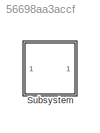
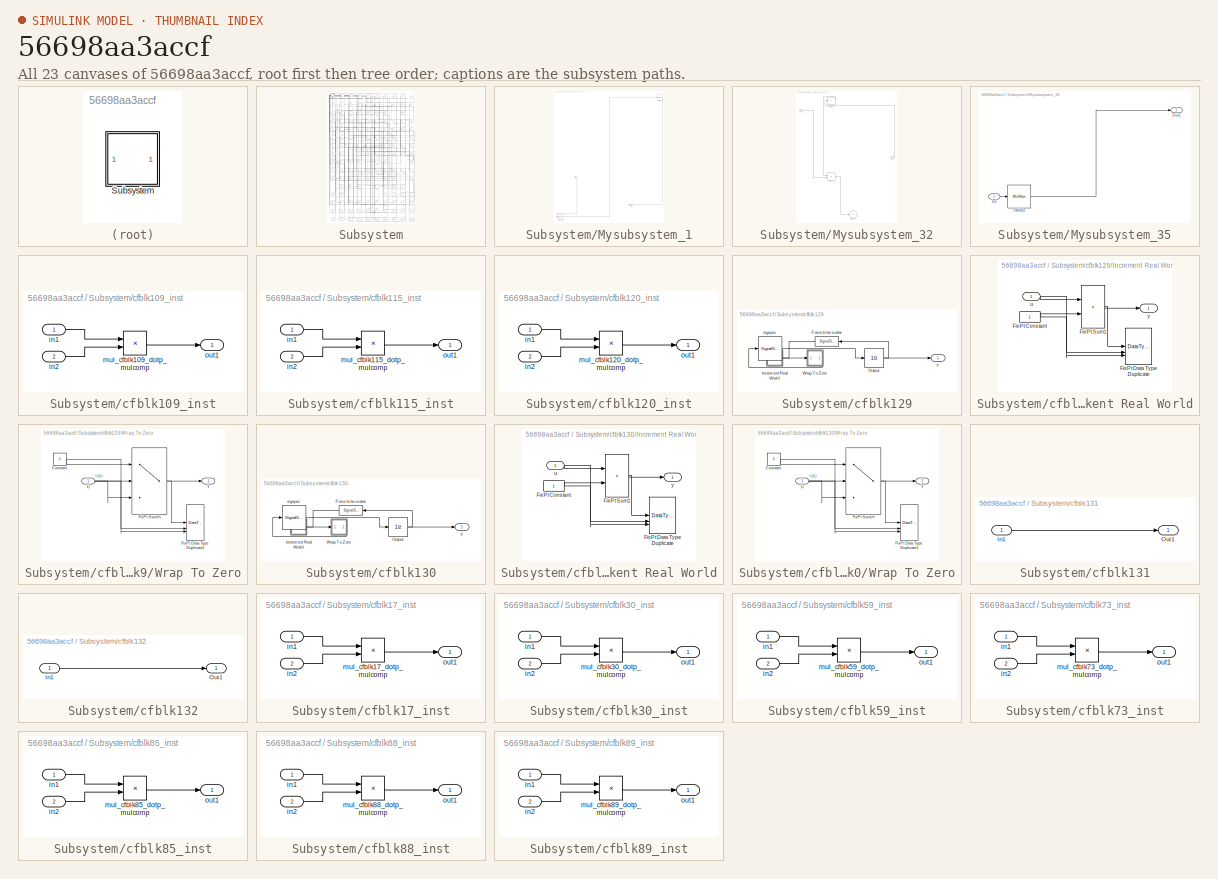
[diagram: thumbnail index - all 23 canvases of the model, root first then tree order]
MODEL slx_56698aa3accf
KIND model
CONFIG AbsTol = auto
CONFIG EnableMultiTasking = off
CONFIG FixedStep = auto
CONFIG MaxStep = auto
CONFIG MinStep = auto
CONFIG RelTol = 1e-3
CONFIG SampleTimeConstraint = Unconstrained
CONFIG SolverName = VariableStepAuto
CONFIG StartTime = 0.0
CONFIG StopTime = 10.0
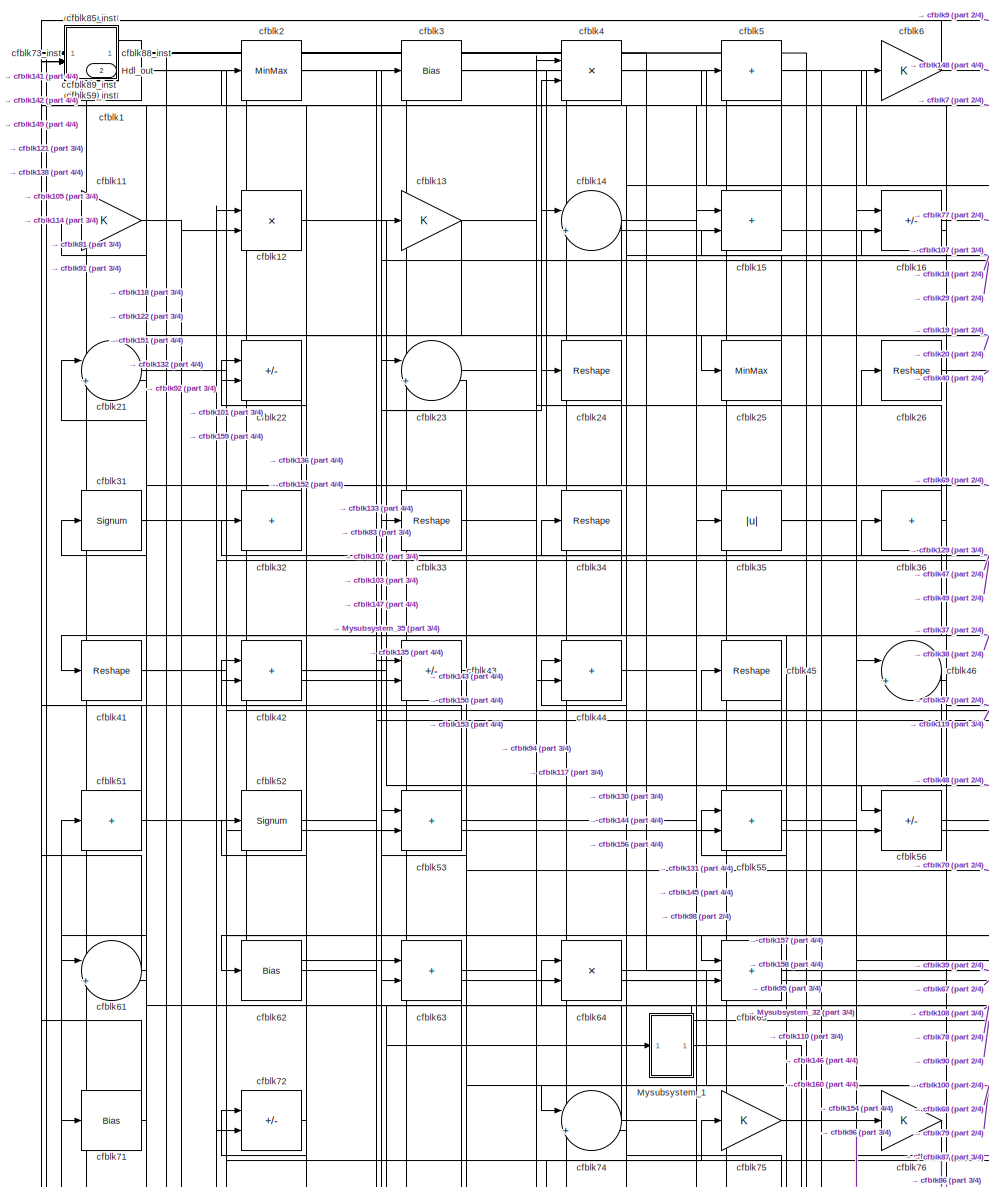
[diagram: Subsystem - part 1/4, top left region]
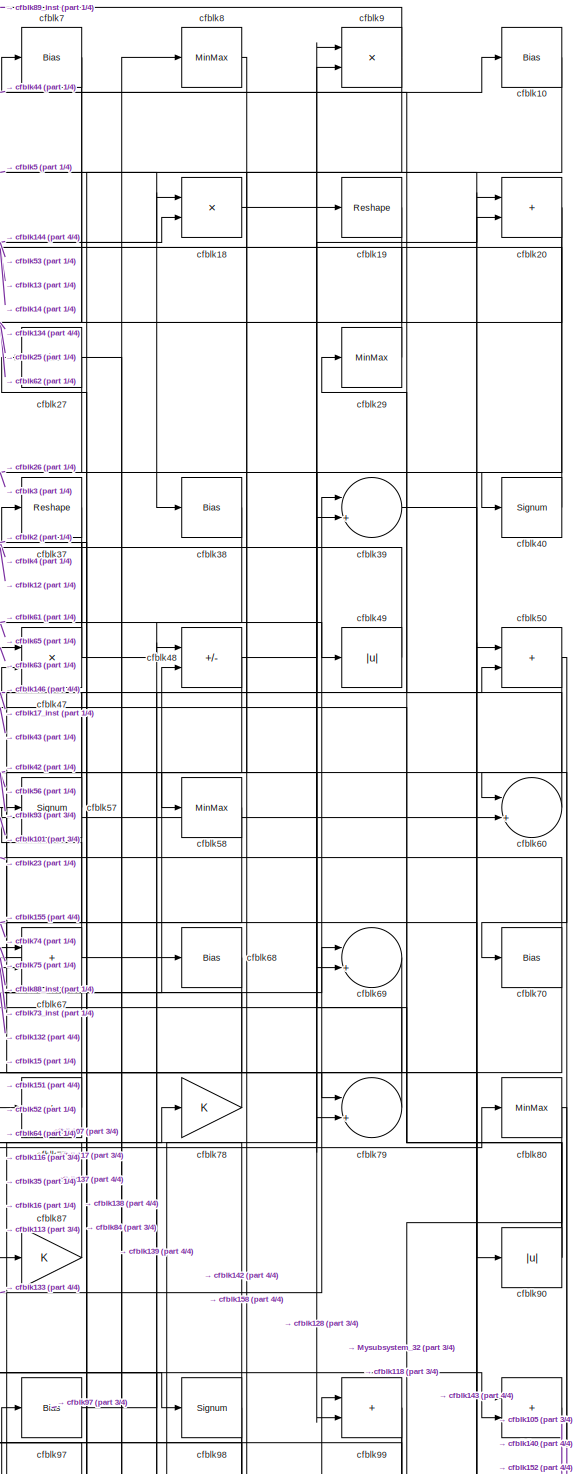
[diagram: Subsystem - part 2/4, top right region]
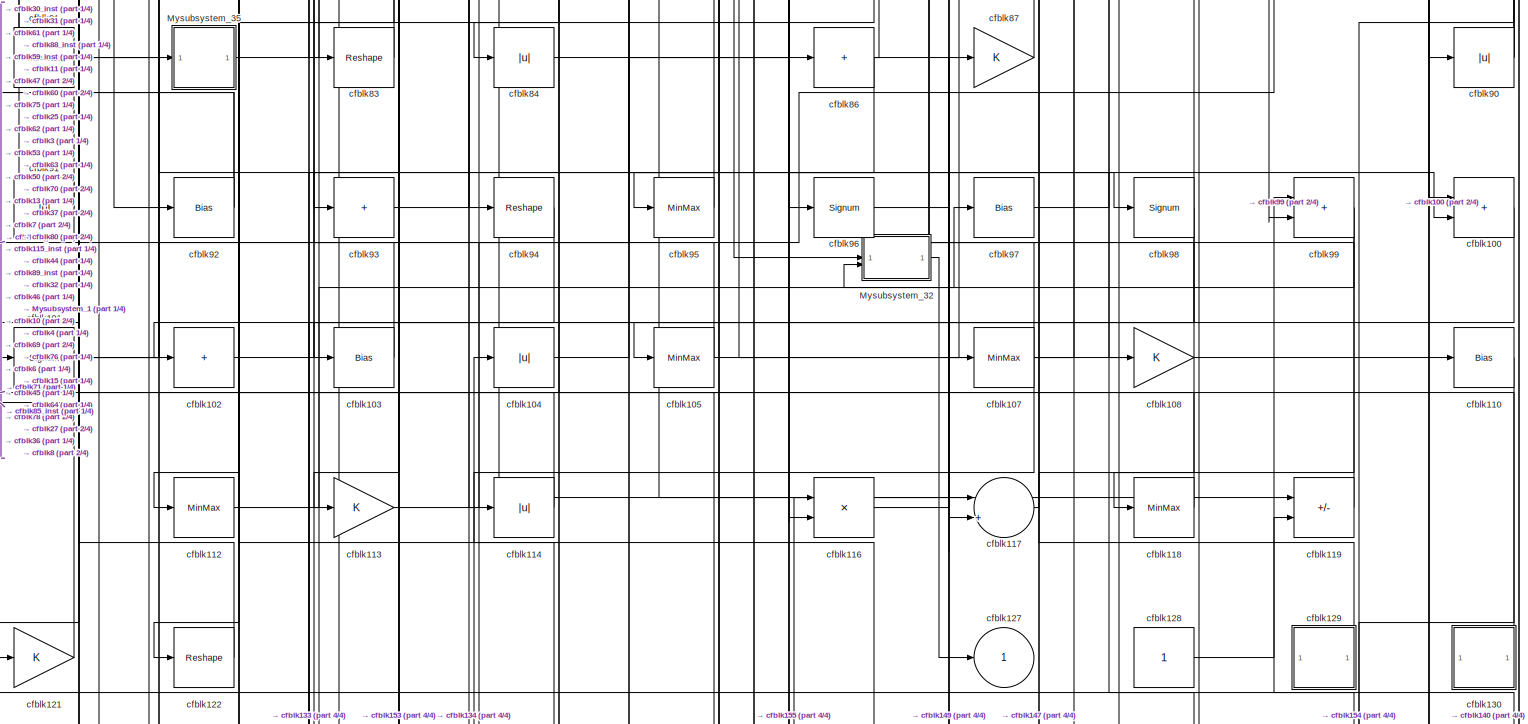
[diagram: Subsystem - part 3/4, full width, middle band]
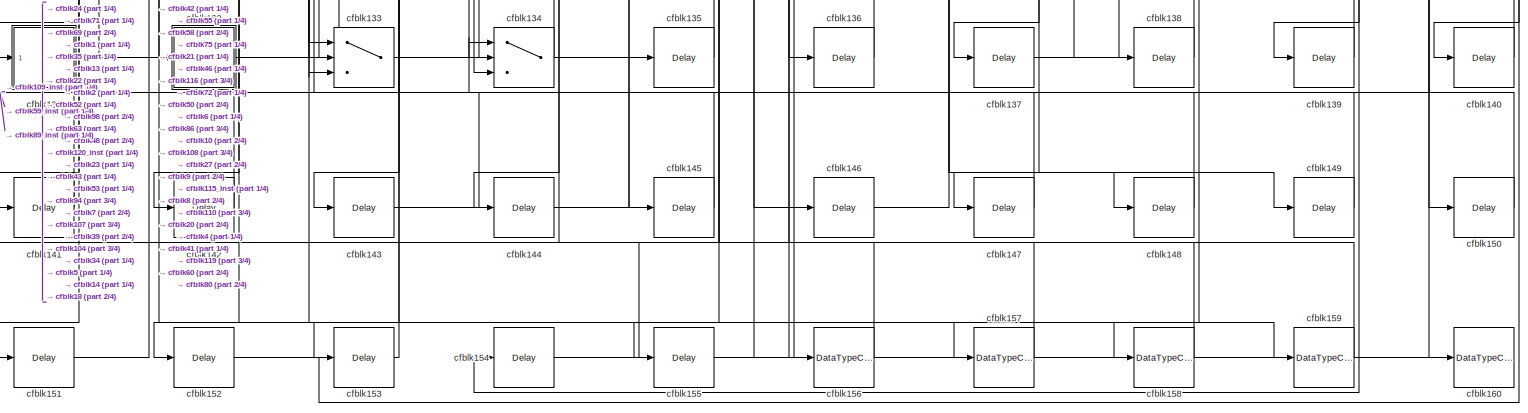
[diagram: Subsystem - part 4/4, full width, bottom band]
BLOCK [SubSystem] Subsystem
BLOCK [Outport] Subsystem/Hdl_out
  OutDataTypeStr = uint8
  Port = 2
  SampleTime = 1
BLOCK [SubSystem] Subsystem/Mysubsystem_1
BLOCK [Inport] Subsystem/Mysubsystem_1/In1
  OutDataTypeStr = uint8
  PortDimensions = 1
  SampleTime = 1
BLOCK [Outport] Subsystem/Mysubsystem_1/Out1
  SampleTime = 1
BLOCK [Signum] Subsystem/Mysubsystem_1/cfblk111
BLOCK [MinMax] Subsystem/Mysubsystem_1/cfblk28
BLOCK [SubSystem] Subsystem/Mysubsystem_32
BLOCK [Inport] Subsystem/Mysubsystem_32/In1
  OutDataTypeStr = uint8
  PortDimensions = 1
  SampleTime = 1
BLOCK [Inport] Subsystem/Mysubsystem_32/In2
  OutDataTypeStr = uint8
  Port = 2
  PortDimensions = 1
  SampleTime = 1
BLOCK [Sum] Subsystem/Mysubsystem_32/cfblk106
  IconShape = rectangular
  Inputs = +-
BLOCK [Outport] Subsystem/Mysubsystem_32/cfblk127
  SampleTime = 1
  VectorParamsAs1DForOutWhenUnconnected = off
BLOCK [Sum] Subsystem/Mysubsystem_32/cfblk66
  IconShape = rectangular
  Inputs = +
BLOCK [SubSystem] Subsystem/Mysubsystem_35
BLOCK [Inport] Subsystem/Mysubsystem_35/In1
  OutDataTypeStr = uint8
  PortDimensions = 1
  SampleTime = 1
BLOCK [Outport] Subsystem/Mysubsystem_35/Out1
  SampleTime = 1
BLOCK [MinMax] Subsystem/Mysubsystem_35/cfblk82
BLOCK [Sum] Subsystem/cfblk1
  IconShape = rectangular
  Inputs = +
  OutDataTypeStr = uint8
BLOCK [Bias] Subsystem/cfblk10
  Bias = 0.0
  SaturateOnIntegerOverflow = off
BLOCK [Sum] Subsystem/cfblk100
  IconShape = rectangular
  OutDataTypeStr = uint8
BLOCK [Signum] Subsystem/cfblk101
BLOCK [Sum] Subsystem/cfblk102
  IconShape = rectangular
  Inputs = +
  OutDataTypeStr = uint8
BLOCK [Bias] Subsystem/cfblk103
  Bias = 0.0
  SaturateOnIntegerOverflow = off
BLOCK [Abs] Subsystem/cfblk104
  OutDataTypeStr = uint8
  SaturateOnIntegerOverflow = off
BLOCK [MinMax] Subsystem/cfblk105
  OutDataTypeStr = uint8
BLOCK [MinMax] Subsystem/cfblk107
  OutDataTypeStr = uint8
BLOCK [Gain] Subsystem/cfblk108
  OutDataTypeStr = uint8
BLOCK [SubSystem] Subsystem/cfblk109_inst
BLOCK [Inport] Subsystem/cfblk109_inst/in1
  OutDataTypeStr = uint8
  SampleTime = 1
BLOCK [Inport] Subsystem/cfblk109_inst/in2
  OutDataTypeStr = uint8
  Port = 2
  SampleTime = 1
BLOCK [Product] Subsystem/cfblk109_inst/mul_cfblk109_dotp_mulcomp
  Inputs = **
  OutDataTypeStr = uint8
  SampleTime = 1
BLOCK [Outport] Subsystem/cfblk109_inst/out1
  OutDataTypeStr = uint8
  SampleTime = 1
BLOCK [Gain] Subsystem/cfblk11
  OutDataTypeStr = uint8
BLOCK [Bias] Subsystem/cfblk110
  Bias = 0.0
  SaturateOnIntegerOverflow = off
BLOCK [MinMax] Subsystem/cfblk112
  OutDataTypeStr = uint8
BLOCK [Gain] Subsystem/cfblk113
  OutDataTypeStr = uint8
BLOCK [Abs] Subsystem/cfblk114
  OutDataTypeStr = uint8
  SaturateOnIntegerOverflow = off
BLOCK [SubSystem] Subsystem/cfblk115_inst
BLOCK [Inport] Subsystem/cfblk115_inst/in1
  OutDataTypeStr = uint8
  SampleTime = 1
BLOCK [Inport] Subsystem/cfblk115_inst/in2
  OutDataTypeStr = uint8
  Port = 2
  SampleTime = 1
BLOCK [Product] Subsystem/cfblk115_inst/mul_cfblk115_dotp_mulcomp
  Inputs = **
  OutDataTypeStr = uint8
  SampleTime = 1
BLOCK [Outport] Subsystem/cfblk115_inst/out1
  OutDataTypeStr = uint8
  SampleTime = 1
BLOCK [Product] Subsystem/cfblk116
  Inputs = */
  OutDataTypeStr = uint8
  RndMeth = Zero
  SaturateOnIntegerOverflow = on
BLOCK [Sum] Subsystem/cfblk117
  Inputs = |++
  OutDataTypeStr = uint8
BLOCK [MinMax] Subsystem/cfblk118
  OutDataTypeStr = uint8
BLOCK [Sum] Subsystem/cfblk119
  IconShape = rectangular
  Inputs = +-
  OutDataTypeStr = uint8
BLOCK [Product] Subsystem/cfblk12
  Inputs = */
  OutDataTypeStr = uint8
  RndMeth = Zero
  SaturateOnIntegerOverflow = on
BLOCK [SubSystem] Subsystem/cfblk120_inst
BLOCK [Inport] Subsystem/cfblk120_inst/in1
  OutDataTypeStr = uint8
  SampleTime = 1
BLOCK [Inport] Subsystem/cfblk120_inst/in2
  OutDataTypeStr = uint8
  Port = 2
  SampleTime = 1
BLOCK [Product] Subsystem/cfblk120_inst/mul_cfblk120_dotp_mulcomp
  Inputs = **
  OutDataTypeStr = uint8
  SampleTime = 1
BLOCK [Outport] Subsystem/cfblk120_inst/out1
  OutDataTypeStr = uint8
  SampleTime = 1
BLOCK [Gain] Subsystem/cfblk121
  OutDataTypeStr = uint8
BLOCK [Reshape] Subsystem/cfblk122
BLOCK [Outport] Subsystem/cfblk127
  OutDataTypeStr = uint8
  SampleTime = 1
  VectorParamsAs1DForOutWhenUnconnected = off
BLOCK [Constant] Subsystem/cfblk128
  OutDataTypeStr = uint8
  SampleTime = -1
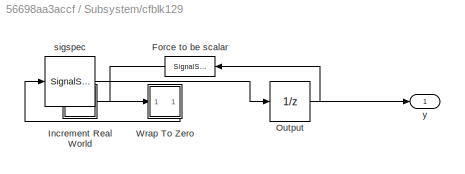
BLOCK [SubSystem] Subsystem/cfblk129
BLOCK [SignalSpecification] Subsystem/cfblk129/Force to be scalar
  Dimensions = 1
  DisableCoverage = on
BLOCK [SubSystem] Subsystem/cfblk129/Increment Real World
BLOCK [Constant] Subsystem/cfblk129/Increment Real World/FixPt Constant
  DisableCoverage = on
  OutDataTypeStr = Inherit: Inherit via back propagation
  SampleTime = -1
BLOCK [DataTypeDuplicate] Subsystem/cfblk129/Increment Real World/FixPt Data Type Duplicate
  DisableCoverage = on
  NumInputPorts = 3
BLOCK [Sum] Subsystem/cfblk129/Increment Real World/FixPt Sum1
  IconShape = rectangular
  InputSameDT = on
  LockScale = on
  OutDataTypeStr = Inherit: Inherit via back propagation
BLOCK [Inport] Subsystem/cfblk129/Increment Real World/u
  OutDataTypeStr = uint16
  SampleTime = 1
BLOCK [Outport] Subsystem/cfblk129/Increment Real World/y
  SampleTime = 1
BLOCK [UnitDelay] Subsystem/cfblk129/Output
  HasFrameUpgradeWarning = on
  InitialCondition = 0.0
  SampleTime = tsamp
BLOCK [SubSystem] Subsystem/cfblk129/Wrap To Zero
BLOCK [Constant] Subsystem/cfblk129/Wrap To Zero/Constant
  DisableCoverage = on
  OutDataTypeStr = Inherit: Inherit via back propagation
  SampleTime = -1
  Value = 0
BLOCK [DataTypeDuplicate] Subsystem/cfblk129/Wrap To Zero/FixPt Data Type Duplicate1
  DisableCoverage = on
  NumInputPorts = 3
BLOCK [Switch] Subsystem/cfblk129/Wrap To Zero/FixPt Switch
  Criteria = u2 > Threshold
  InputSameDT = off
  OutDataTypeStr = Inherit: Inherit via back propagation
  SaturateOnIntegerOverflow = off
  Threshold = Threshold
  ZeroCross = off
BLOCK [Inport] Subsystem/cfblk129/Wrap To Zero/U
  OutDataTypeStr = uint16
  SampleTime = 1
BLOCK [Outport] Subsystem/cfblk129/Wrap To Zero/Y
  SampleTime = 1
BLOCK [SignalSpecification] Subsystem/cfblk129/sigspec
  Dimensions = 1
  OutDataTypeStr = uint16
BLOCK [Outport] Subsystem/cfblk129/y
  SampleTime = 1
BLOCK [Gain] Subsystem/cfblk13
  OutDataTypeStr = uint8
BLOCK [SubSystem] Subsystem/cfblk130
BLOCK [SignalSpecification] Subsystem/cfblk130/Force to be scalar
  Dimensions = 1
  DisableCoverage = on
BLOCK [SubSystem] Subsystem/cfblk130/Increment Real World
BLOCK [Constant] Subsystem/cfblk130/Increment Real World/FixPt Constant
  DisableCoverage = on
  OutDataTypeStr = Inherit: Inherit via back propagation
  SampleTime = -1
BLOCK [DataTypeDuplicate] Subsystem/cfblk130/Increment Real World/FixPt Data Type Duplicate
  DisableCoverage = on
  NumInputPorts = 3
BLOCK [Sum] Subsystem/cfblk130/Increment Real World/FixPt Sum1
  IconShape = rectangular
  InputSameDT = on
  LockScale = on
  OutDataTypeStr = Inherit: Inherit via back propagation
BLOCK [Inport] Subsystem/cfblk130/Increment Real World/u
  OutDataTypeStr = uint16
  SampleTime = 1
BLOCK [Outport] Subsystem/cfblk130/Increment Real World/y
  SampleTime = 1
BLOCK [UnitDelay] Subsystem/cfblk130/Output
  HasFrameUpgradeWarning = on
  InitialCondition = 0.0
  SampleTime = tsamp
BLOCK [SubSystem] Subsystem/cfblk130/Wrap To Zero
BLOCK [Constant] Subsystem/cfblk130/Wrap To Zero/Constant
  DisableCoverage = on
  OutDataTypeStr = Inherit: Inherit via back propagation
  SampleTime = -1
  Value = 0
BLOCK [DataTypeDuplicate] Subsystem/cfblk130/Wrap To Zero/FixPt Data Type Duplicate1
  DisableCoverage = on
  NumInputPorts = 3
BLOCK [Switch] Subsystem/cfblk130/Wrap To Zero/FixPt Switch
  Criteria = u2 > Threshold
  InputSameDT = off
  OutDataTypeStr = Inherit: Inherit via back propagation
  SaturateOnIntegerOverflow = off
  Threshold = Threshold
  ZeroCross = off
BLOCK [Inport] Subsystem/cfblk130/Wrap To Zero/U
  OutDataTypeStr = uint16
  SampleTime = 1
BLOCK [Outport] Subsystem/cfblk130/Wrap To Zero/Y
  SampleTime = 1
BLOCK [SignalSpecification] Subsystem/cfblk130/sigspec
  Dimensions = 1
  OutDataTypeStr = uint16
BLOCK [Outport] Subsystem/cfblk130/y
  SampleTime = 1
BLOCK [SubSystem] Subsystem/cfblk131
BLOCK [Inport] Subsystem/cfblk131/In1
  OutDataTypeStr = uint8
  PortDimensions = 1
  SampleTime = 1
BLOCK [Outport] Subsystem/cfblk131/Out1
  SampleTime = 1
BLOCK [SubSystem] Subsystem/cfblk132
BLOCK [Inport] Subsystem/cfblk132/In1
  OutDataTypeStr = uint8
  PortDimensions = 1
  SampleTime = 1
BLOCK [Outport] Subsystem/cfblk132/Out1
  SampleTime = 1
BLOCK [Switch] Subsystem/cfblk133
  InputSameDT = off
  OutDataTypeStr = uint8
  SaturateOnIntegerOverflow = off
BLOCK [Switch] Subsystem/cfblk134
  InputSameDT = off
  OutDataTypeStr = uint8
  SaturateOnIntegerOverflow = off
BLOCK [Delay] Subsystem/cfblk135
  InputPortMap = u0
  SampleTime = 1
BLOCK [Delay] Subsystem/cfblk136
  InputPortMap = u0
  SampleTime = 1
BLOCK [Delay] Subsystem/cfblk137
  InputPortMap = u0
  SampleTime = 1
BLOCK [Delay] Subsystem/cfblk138
  InputPortMap = u0
  SampleTime = 1
BLOCK [Delay] Subsystem/cfblk139
  InputPortMap = u0
  SampleTime = 1
BLOCK [Sum] Subsystem/cfblk14
  Inputs = |++
  OutDataTypeStr = uint8
BLOCK [Delay] Subsystem/cfblk140
  InputPortMap = u0
  SampleTime = 1
BLOCK [Delay] Subsystem/cfblk141
  InputPortMap = u0
  SampleTime = 1
BLOCK [Delay] Subsystem/cfblk142
  InputPortMap = u0
  SampleTime = 1
BLOCK [Delay] Subsystem/cfblk143
  InputPortMap = u0
  SampleTime = 1
BLOCK [Delay] Subsystem/cfblk144
  InputPortMap = u0
  SampleTime = 1
BLOCK [Delay] Subsystem/cfblk145
  InputPortMap = u0
  SampleTime = 1
BLOCK [Delay] Subsystem/cfblk146
  InputPortMap = u0
  SampleTime = 1
BLOCK [Delay] Subsystem/cfblk147
  InputPortMap = u0
  SampleTime = 1
BLOCK [Delay] Subsystem/cfblk148
  InputPortMap = u0
  SampleTime = 1
BLOCK [Delay] Subsystem/cfblk149
  InputPortMap = u0
  SampleTime = 1
BLOCK [Sum] Subsystem/cfblk15
  IconShape = rectangular
  OutDataTypeStr = uint8
BLOCK [Delay] Subsystem/cfblk150
  InputPortMap = u0
  SampleTime = 1
BLOCK [Delay] Subsystem/cfblk151
  InputPortMap = u0
  SampleTime = 1
BLOCK [Delay] Subsystem/cfblk152
  InputPortMap = u0
  SampleTime = 1
BLOCK [Delay] Subsystem/cfblk153
  InputPortMap = u0
  SampleTime = 1
BLOCK [Delay] Subsystem/cfblk154
  InputPortMap = u0
  SampleTime = 1
BLOCK [Delay] Subsystem/cfblk155
  InputPortMap = u0
  SampleTime = 1
BLOCK [DataTypeConversion] Subsystem/cfblk156
  OutDataTypeStr = uint8
  RndMeth = Floor
  SaturateOnIntegerOverflow = off
BLOCK [DataTypeConversion] Subsystem/cfblk157
  OutDataTypeStr = uint8
  RndMeth = Floor
  SaturateOnIntegerOverflow = off
BLOCK [DataTypeConversion] Subsystem/cfblk158
  OutDataTypeStr = uint8
  RndMeth = Floor
  SaturateOnIntegerOverflow = off
BLOCK [DataTypeConversion] Subsystem/cfblk159
  OutDataTypeStr = uint8
  RndMeth = Floor
  SaturateOnIntegerOverflow = off
BLOCK [Sum] Subsystem/cfblk16
  IconShape = rectangular
  Inputs = +-
  OutDataTypeStr = uint8
BLOCK [DataTypeConversion] Subsystem/cfblk160
  OutDataTypeStr = uint8
  RndMeth = Floor
  SaturateOnIntegerOverflow = off
BLOCK [SubSystem] Subsystem/cfblk17_inst
BLOCK [Inport] Subsystem/cfblk17_inst/in1
  OutDataTypeStr = uint8
  SampleTime = 1
BLOCK [Inport] Subsystem/cfblk17_inst/in2
  OutDataTypeStr = uint8
  Port = 2
  SampleTime = 1
BLOCK [Product] Subsystem/cfblk17_inst/mul_cfblk17_dotp_mulcomp
  Inputs = **
  OutDataTypeStr = uint8
  SampleTime = 1
BLOCK [Outport] Subsystem/cfblk17_inst/out1
  OutDataTypeStr = uint8
  SampleTime = 1
BLOCK [Product] Subsystem/cfblk18
  Inputs = */
  OutDataTypeStr = uint8
  RndMeth = Zero
  SaturateOnIntegerOverflow = on
BLOCK [Reshape] Subsystem/cfblk19
BLOCK [MinMax] Subsystem/cfblk2
  OutDataTypeStr = uint8
BLOCK [Sum] Subsystem/cfblk20
  IconShape = rectangular
  OutDataTypeStr = uint8
BLOCK [Sum] Subsystem/cfblk21
  Inputs = |++
  OutDataTypeStr = uint8
BLOCK [Sum] Subsystem/cfblk22
  IconShape = rectangular
  Inputs = +-
  OutDataTypeStr = uint8
BLOCK [Sum] Subsystem/cfblk23
  Inputs = |++
  OutDataTypeStr = uint8
BLOCK [Reshape] Subsystem/cfblk24
BLOCK [MinMax] Subsystem/cfblk25
  OutDataTypeStr = uint8
BLOCK [Reshape] Subsystem/cfblk26
BLOCK [Bias] Subsystem/cfblk27
  Bias = 0.0
  SaturateOnIntegerOverflow = off
BLOCK [MinMax] Subsystem/cfblk29
  OutDataTypeStr = uint8
BLOCK [Bias] Subsystem/cfblk3
  Bias = 0.0
  SaturateOnIntegerOverflow = off
BLOCK [SubSystem] Subsystem/cfblk30_inst
BLOCK [Inport] Subsystem/cfblk30_inst/in1
  OutDataTypeStr = uint8
  SampleTime = 1
BLOCK [Inport] Subsystem/cfblk30_inst/in2
  OutDataTypeStr = uint8
  Port = 2
  SampleTime = 1
BLOCK [Product] Subsystem/cfblk30_inst/mul_cfblk30_dotp_mulcomp
  Inputs = **
  OutDataTypeStr = uint8
  SampleTime = 1
BLOCK [Outport] Subsystem/cfblk30_inst/out1
  OutDataTypeStr = uint8
  SampleTime = 1
BLOCK [Signum] Subsystem/cfblk31
BLOCK [Sum] Subsystem/cfblk32
  IconShape = rectangular
  Inputs = +
  OutDataTypeStr = uint8
BLOCK [Reshape] Subsystem/cfblk33
BLOCK [Reshape] Subsystem/cfblk34
BLOCK [Abs] Subsystem/cfblk35
  OutDataTypeStr = uint8
  SaturateOnIntegerOverflow = off
BLOCK [Sum] Subsystem/cfblk36
  IconShape = rectangular
  Inputs = +
  OutDataTypeStr = uint8
BLOCK [Reshape] Subsystem/cfblk37
BLOCK [Bias] Subsystem/cfblk38
  Bias = 0.0
  SaturateOnIntegerOverflow = off
BLOCK [Sum] Subsystem/cfblk39
  Inputs = |++
  OutDataTypeStr = uint8
BLOCK [Product] Subsystem/cfblk4
  Inputs = */
  OutDataTypeStr = uint8
  RndMeth = Zero
  SaturateOnIntegerOverflow = on
BLOCK [Signum] Subsystem/cfblk40
BLOCK [Reshape] Subsystem/cfblk41
BLOCK [Sum] Subsystem/cfblk42
  IconShape = rectangular
  OutDataTypeStr = uint8
BLOCK [Sum] Subsystem/cfblk43
  IconShape = rectangular
  Inputs = +-
  OutDataTypeStr = uint8
BLOCK [Sum] Subsystem/cfblk44
  IconShape = rectangular
  OutDataTypeStr = uint8
BLOCK [Reshape] Subsystem/cfblk45
BLOCK [Sum] Subsystem/cfblk46
  Inputs = |++
  OutDataTypeStr = uint8
BLOCK [Product] Subsystem/cfblk47
  Inputs = */
  OutDataTypeStr = uint8
  RndMeth = Zero
  SaturateOnIntegerOverflow = on
BLOCK [Sum] Subsystem/cfblk48
  IconShape = rectangular
  Inputs = +-
  OutDataTypeStr = uint8
BLOCK [Abs] Subsystem/cfblk49
  OutDataTypeStr = uint8
  SaturateOnIntegerOverflow = off
BLOCK [Sum] Subsystem/cfblk5
  IconShape = rectangular
  Inputs = +
  OutDataTypeStr = uint8
BLOCK [Sum] Subsystem/cfblk50
  IconShape = rectangular
  OutDataTypeStr = uint8
BLOCK [Sum] Subsystem/cfblk51
  IconShape = rectangular
  Inputs = +
  OutDataTypeStr = uint8
BLOCK [Signum] Subsystem/cfblk52
BLOCK [Sum] Subsystem/cfblk53
  IconShape = rectangular
  OutDataTypeStr = uint8
BLOCK [Sum] Subsystem/cfblk55
  IconShape = rectangular
  OutDataTypeStr = uint8
BLOCK [Sum] Subsystem/cfblk56
  IconShape = rectangular
  Inputs = +-
  OutDataTypeStr = uint8
BLOCK [Signum] Subsystem/cfblk57
BLOCK [MinMax] Subsystem/cfblk58
  OutDataTypeStr = uint8
BLOCK [SubSystem] Subsystem/cfblk59_inst
BLOCK [Inport] Subsystem/cfblk59_inst/in1
  OutDataTypeStr = uint8
  SampleTime = 1
BLOCK [Inport] Subsystem/cfblk59_inst/in2
  OutDataTypeStr = uint8
  Port = 2
  SampleTime = 1
BLOCK [Product] Subsystem/cfblk59_inst/mul_cfblk59_dotp_mulcomp
  Inputs = **
  OutDataTypeStr = uint8
  SampleTime = 1
BLOCK [Outport] Subsystem/cfblk59_inst/out1
  OutDataTypeStr = uint8
  SampleTime = 1
BLOCK [Gain] Subsystem/cfblk6
  OutDataTypeStr = uint8
BLOCK [Sum] Subsystem/cfblk60
  Inputs = |++
  OutDataTypeStr = uint8
BLOCK [Sum] Subsystem/cfblk61
  Inputs = |++
  OutDataTypeStr = uint8
BLOCK [Bias] Subsystem/cfblk62
  Bias = 0.0
  SaturateOnIntegerOverflow = off
BLOCK [Sum] Subsystem/cfblk63
  IconShape = rectangular
  OutDataTypeStr = uint8
BLOCK [Product] Subsystem/cfblk64
  Inputs = */
  OutDataTypeStr = uint8
  RndMeth = Zero
  SaturateOnIntegerOverflow = on
BLOCK [Sum] Subsystem/cfblk65
  IconShape = rectangular
  OutDataTypeStr = uint8
BLOCK [Sum] Subsystem/cfblk67
  IconShape = rectangular
  OutDataTypeStr = uint8
BLOCK [Bias] Subsystem/cfblk68
  Bias = 0.0
  SaturateOnIntegerOverflow = off
BLOCK [Sum] Subsystem/cfblk69
  Inputs = |++
  OutDataTypeStr = uint8
BLOCK [Bias] Subsystem/cfblk7
  Bias = 0.0
  SaturateOnIntegerOverflow = off
BLOCK [Bias] Subsystem/cfblk70
  Bias = 0.0
  SaturateOnIntegerOverflow = off
BLOCK [Bias] Subsystem/cfblk71
  Bias = 0.0
  SaturateOnIntegerOverflow = off
BLOCK [Sum] Subsystem/cfblk72
  IconShape = rectangular
  Inputs = +-
  OutDataTypeStr = uint8
BLOCK [SubSystem] Subsystem/cfblk73_inst
BLOCK [Inport] Subsystem/cfblk73_inst/in1
  OutDataTypeStr = uint8
  SampleTime = 1
BLOCK [Inport] Subsystem/cfblk73_inst/in2
  OutDataTypeStr = uint8
  Port = 2
  SampleTime = 1
BLOCK [Product] Subsystem/cfblk73_inst/mul_cfblk73_dotp_mulcomp
  Inputs = **
  OutDataTypeStr = uint8
  SampleTime = 1
BLOCK [Outport] Subsystem/cfblk73_inst/out1
  OutDataTypeStr = uint8
  SampleTime = 1
BLOCK [Sum] Subsystem/cfblk74
  Inputs = |++
  OutDataTypeStr = uint8
BLOCK [Gain] Subsystem/cfblk75
  OutDataTypeStr = uint8
BLOCK [Gain] Subsystem/cfblk76
  OutDataTypeStr = uint8
BLOCK [Sum] Subsystem/cfblk77
  IconShape = rectangular
  Inputs = +
  OutDataTypeStr = uint8
BLOCK [Gain] Subsystem/cfblk78
  OutDataTypeStr = uint8
BLOCK [Sum] Subsystem/cfblk79
  Inputs = |++
  OutDataTypeStr = uint8
BLOCK [MinMax] Subsystem/cfblk8
  OutDataTypeStr = uint8
BLOCK [MinMax] Subsystem/cfblk80
  OutDataTypeStr = uint8
BLOCK [MinMax] Subsystem/cfblk81
  OutDataTypeStr = uint8
BLOCK [Reshape] Subsystem/cfblk83
BLOCK [Abs] Subsystem/cfblk84
  OutDataTypeStr = uint8
  SaturateOnIntegerOverflow = off
BLOCK [SubSystem] Subsystem/cfblk85_inst
BLOCK [Inport] Subsystem/cfblk85_inst/in1
  OutDataTypeStr = uint8
  SampleTime = 1
BLOCK [Inport] Subsystem/cfblk85_inst/in2
  OutDataTypeStr = uint8
  Port = 2
  SampleTime = 1
BLOCK [Product] Subsystem/cfblk85_inst/mul_cfblk85_dotp_mulcomp
  Inputs = **
  OutDataTypeStr = uint8
  SampleTime = 1
BLOCK [Outport] Subsystem/cfblk85_inst/out1
  OutDataTypeStr = uint8
  SampleTime = 1
BLOCK [Sum] Subsystem/cfblk86
  IconShape = rectangular
  Inputs = +
  OutDataTypeStr = uint8
BLOCK [Gain] Subsystem/cfblk87
  OutDataTypeStr = uint8
BLOCK [SubSystem] Subsystem/cfblk88_inst
BLOCK [Inport] Subsystem/cfblk88_inst/in1
  OutDataTypeStr = uint8
  SampleTime = 1
BLOCK [Inport] Subsystem/cfblk88_inst/in2
  OutDataTypeStr = uint8
  Port = 2
  SampleTime = 1
BLOCK [Product] Subsystem/cfblk88_inst/mul_cfblk88_dotp_mulcomp
  Inputs = **
  OutDataTypeStr = uint8
  SampleTime = 1
BLOCK [Outport] Subsystem/cfblk88_inst/out1
  OutDataTypeStr = uint8
  SampleTime = 1
BLOCK [SubSystem] Subsystem/cfblk89_inst
BLOCK [Inport] Subsystem/cfblk89_inst/in1
  OutDataTypeStr = uint8
  SampleTime = 1
BLOCK [Inport] Subsystem/cfblk89_inst/in2
  OutDataTypeStr = uint8
  Port = 2
  SampleTime = 1
BLOCK [Product] Subsystem/cfblk89_inst/mul_cfblk89_dotp_mulcomp
  Inputs = **
  OutDataTypeStr = uint8
  SampleTime = 1
BLOCK [Outport] Subsystem/cfblk89_inst/out1
  OutDataTypeStr = uint8
  SampleTime = 1
BLOCK [Product] Subsystem/cfblk9
  Inputs = */
  OutDataTypeStr = uint8
  RndMeth = Zero
  SaturateOnIntegerOverflow = on
BLOCK [Abs] Subsystem/cfblk90
  OutDataTypeStr = uint8
  SaturateOnIntegerOverflow = off
BLOCK [Abs] Subsystem/cfblk91
  OutDataTypeStr = uint8
  SaturateOnIntegerOverflow = off
BLOCK [Bias] Subsystem/cfblk92
  Bias = 0.0
  SaturateOnIntegerOverflow = off
BLOCK [Sum] Subsystem/cfblk93
  IconShape = rectangular
  Inputs = +
  OutDataTypeStr = uint8
BLOCK [Reshape] Subsystem/cfblk94
BLOCK [MinMax] Subsystem/cfblk95
  OutDataTypeStr = uint8
BLOCK [Signum] Subsystem/cfblk96
BLOCK [Bias] Subsystem/cfblk97
  Bias = 0.0
  SaturateOnIntegerOverflow = off
BLOCK [Signum] Subsystem/cfblk98
BLOCK [Sum] Subsystem/cfblk99
  IconShape = rectangular
  OutDataTypeStr = uint8
ANNOTATION Subsystem/cfblk129/Wrap To Zero: U(k)
ANNOTATION Subsystem/cfblk130/Wrap To Zero: U(k)
LINE Subsystem/Mysubsystem_1/In1:1 -> Subsystem/Mysubsystem_1/cfblk111:1
LINE Subsystem/Mysubsystem_1/cfblk111:1 -> Subsystem/Mysubsystem_1/cfblk28:1
LINE Subsystem/Mysubsystem_1/cfblk28:1 -> Subsystem/Mysubsystem_1/Out1:1
LINE Subsystem/Mysubsystem_1:1 -> Subsystem/Mysubsystem_32:1
LINE Subsystem/Mysubsystem_32/In1:1 -> Subsystem/Mysubsystem_32/cfblk106:2
LINE Subsystem/Mysubsystem_32/In2:1 -> Subsystem/Mysubsystem_32/cfblk66:1
LINE Subsystem/Mysubsystem_32/cfblk106:1 -> Subsystem/Mysubsystem_32/cfblk127:1
LINE Subsystem/Mysubsystem_32/cfblk66:1 -> Subsystem/Mysubsystem_32/cfblk106:1
LINE Subsystem/Mysubsystem_32:1 -> Subsystem/cfblk127:1
LINE Subsystem/Mysubsystem_35/In1:1 -> Subsystem/Mysubsystem_35/cfblk82:1
LINE Subsystem/Mysubsystem_35/cfblk82:1 -> Subsystem/Mysubsystem_35/Out1:1
LINE Subsystem/Mysubsystem_35:1 -> Subsystem/Mysubsystem_1:1
LINE Subsystem/cfblk100:1 -> Subsystem/cfblk105:1
NET Subsystem/cfblk101:1 -> Subsystem/cfblk47:2, Subsystem/cfblk60:2, Subsystem/cfblk75:1
LINE Subsystem/cfblk102:1 -> Subsystem/cfblk3:1
LINE Subsystem/cfblk103:1 -> Subsystem/cfblk53:1
LINE Subsystem/cfblk104:1 -> Subsystem/cfblk86:1
NET Subsystem/cfblk105:1 -> Subsystem/cfblk51:1, Subsystem/cfblk78:1
NET Subsystem/cfblk107:1 -> Subsystem/cfblk134:3, Subsystem/cfblk15:2, Subsystem/cfblk8:1
NET Subsystem/cfblk108:1 -> Subsystem/cfblk147:1, Subsystem/cfblk64:1
LINE Subsystem/cfblk109_inst/in1:1 -> Subsystem/cfblk109_inst/mul_cfblk109_dotp_mulcomp:1
LINE Subsystem/cfblk109_inst/in2:1 -> Subsystem/cfblk109_inst/mul_cfblk109_dotp_mulcomp:2
LINE Subsystem/cfblk109_inst/mul_cfblk109_dotp_mulcomp:1 -> Subsystem/cfblk109_inst/out1:1
LINE Subsystem/cfblk109_inst:1 -> Subsystem/cfblk63:1
LINE Subsystem/cfblk10:1 -> Subsystem/cfblk137:1
LINE Subsystem/cfblk110:1 -> Subsystem/cfblk154:1
LINE Subsystem/cfblk112:1 -> Subsystem/cfblk97:1
LINE Subsystem/cfblk113:1 -> Subsystem/cfblk80:1
LINE Subsystem/cfblk114:1 -> Subsystem/cfblk71:1
LINE Subsystem/cfblk115_inst/in1:1 -> Subsystem/cfblk115_inst/mul_cfblk115_dotp_mulcomp:1
LINE Subsystem/cfblk115_inst/in2:1 -> Subsystem/cfblk115_inst/mul_cfblk115_dotp_mulcomp:2
LINE Subsystem/cfblk115_inst/mul_cfblk115_dotp_mulcomp:1 -> Subsystem/cfblk115_inst/out1:1
LINE Subsystem/cfblk115_inst:1 -> Subsystem/cfblk117:1
LINE Subsystem/cfblk116:1 -> Subsystem/cfblk87:1
LINE Subsystem/cfblk117:1 -> Subsystem/cfblk27:1
LINE Subsystem/cfblk118:1 -> Subsystem/cfblk61:2
LINE Subsystem/cfblk119:1 -> Subsystem/cfblk45:1
LINE Subsystem/cfblk11:1 -> Subsystem/cfblk92:1
LINE Subsystem/cfblk120_inst/in1:1 -> Subsystem/cfblk120_inst/mul_cfblk120_dotp_mulcomp:1
LINE Subsystem/cfblk120_inst/in2:1 -> Subsystem/cfblk120_inst/mul_cfblk120_dotp_mulcomp:2
LINE Subsystem/cfblk120_inst/mul_cfblk120_dotp_mulcomp:1 -> Subsystem/cfblk120_inst/out1:1
LINE Subsystem/cfblk120_inst:1 -> Subsystem/cfblk135:1
LINE Subsystem/cfblk121:1 -> Subsystem/cfblk85_inst:1
LINE Subsystem/cfblk122:1 -> Subsystem/cfblk11:1
LINE Subsystem/cfblk128:1 -> Subsystem/cfblk99:1
LINE Subsystem/cfblk129:1 -> Subsystem/cfblk36:1
LINE Subsystem/cfblk12:1 -> Subsystem/cfblk56:1
LINE Subsystem/cfblk130:1 -> Subsystem/cfblk44:1
LINE Subsystem/cfblk131/In1:1 -> Subsystem/cfblk131/Out1:1
LINE Subsystem/cfblk131:1 -> Subsystem/cfblk35:1
LINE Subsystem/cfblk132/In1:1 -> Subsystem/cfblk132/Out1:1
LINE Subsystem/cfblk132:1 -> Subsystem/cfblk48:2
LINE Subsystem/cfblk133:1 -> Subsystem/cfblk39:1
LINE Subsystem/cfblk134:1 -> Subsystem/cfblk104:1
LINE Subsystem/cfblk135:1 -> Subsystem/cfblk42:1
LINE Subsystem/cfblk136:1 -> Subsystem/cfblk72:1
LINE Subsystem/cfblk137:1 -> Subsystem/cfblk9:2
LINE Subsystem/cfblk138:1 -> Subsystem/cfblk115_inst:2
LINE Subsystem/cfblk139:1 -> Subsystem/cfblk48:1
NET Subsystem/cfblk13:1 -> Subsystem/cfblk152:1, Subsystem/cfblk94:1
LINE Subsystem/cfblk140:1 -> Subsystem/cfblk119:2
LINE Subsystem/cfblk141:1 -> Subsystem/cfblk109_inst:1
LINE Subsystem/cfblk142:1 -> Subsystem/cfblk59_inst:1
LINE Subsystem/cfblk143:1 -> Subsystem/cfblk20:2
LINE Subsystem/cfblk144:1 -> Subsystem/cfblk18:2
LINE Subsystem/cfblk145:1 -> Subsystem/cfblk22:1
LINE Subsystem/cfblk146:1 -> Subsystem/cfblk50:2
LINE Subsystem/cfblk147:1 -> Subsystem/cfblk63:2
LINE Subsystem/cfblk148:1 -> Subsystem/cfblk134:1
LINE Subsystem/cfblk149:1 -> Subsystem/cfblk89_inst:2
NET Subsystem/cfblk14:1 -> Subsystem/cfblk145:1, Subsystem/cfblk21:2
LINE Subsystem/cfblk150:1 -> Subsystem/cfblk23:1
LINE Subsystem/cfblk151:1 -> Subsystem/cfblk69:1
LINE Subsystem/cfblk152:1 -> Subsystem/cfblk60:1
LINE Subsystem/cfblk153:1 -> Subsystem/cfblk53:2
LINE Subsystem/cfblk154:1 -> Subsystem/cfblk46:1
LINE Subsystem/cfblk155:1 -> Subsystem/cfblk116:1
LINE Subsystem/cfblk156:1 -> Subsystem/cfblk34:1
LINE Subsystem/cfblk157:1 -> Subsystem/cfblk55:1
LINE Subsystem/cfblk158:1 -> Subsystem/cfblk55:2
LINE Subsystem/cfblk159:1 -> Subsystem/cfblk109_inst:2
LINE Subsystem/cfblk15:1 -> Subsystem/cfblk73_inst:1
LINE Subsystem/cfblk160:1 -> Subsystem/cfblk1:1
LINE Subsystem/cfblk16:1 -> Subsystem/cfblk77:1
LINE Subsystem/cfblk17_inst/in1:1 -> Subsystem/cfblk17_inst/mul_cfblk17_dotp_mulcomp:1
LINE Subsystem/cfblk17_inst/in2:1 -> Subsystem/cfblk17_inst/mul_cfblk17_dotp_mulcomp:2
LINE Subsystem/cfblk17_inst/mul_cfblk17_dotp_mulcomp:1 -> Subsystem/cfblk17_inst/out1:1
LINE Subsystem/cfblk17_inst:1 -> Subsystem/cfblk30_inst:2
LINE Subsystem/cfblk18:1 -> Subsystem/cfblk19:1
LINE Subsystem/cfblk19:1 -> Subsystem/cfblk62:1
LINE Subsystem/cfblk1:1 -> Subsystem/cfblk159:1
NET Subsystem/cfblk20:1 -> Subsystem/cfblk25:1, Subsystem/cfblk99:2
LINE Subsystem/cfblk21:1 -> Subsystem/cfblk136:1
LINE Subsystem/cfblk22:1 -> Subsystem/cfblk72:2
LINE Subsystem/cfblk23:1 -> Subsystem/cfblk44:2
LINE Subsystem/cfblk24:1 -> Subsystem/cfblk131:1
NET Subsystem/cfblk25:1 -> Subsystem/cfblk122:1, Subsystem/cfblk30_inst:1
LINE Subsystem/cfblk26:1 -> Subsystem/cfblk40:1
NET Subsystem/cfblk27:1 -> Subsystem/cfblk138:1, Subsystem/cfblk84:1
LINE Subsystem/cfblk29:1 -> Subsystem/cfblk13:1
LINE Subsystem/cfblk2:1 -> Subsystem/cfblk133:1
LINE Subsystem/cfblk30_inst/in1:1 -> Subsystem/cfblk30_inst/mul_cfblk30_dotp_mulcomp:1
LINE Subsystem/cfblk30_inst/in2:1 -> Subsystem/cfblk30_inst/mul_cfblk30_dotp_mulcomp:2
LINE Subsystem/cfblk30_inst/mul_cfblk30_dotp_mulcomp:1 -> Subsystem/cfblk30_inst/out1:1
LINE Subsystem/cfblk30_inst:1 -> Subsystem/cfblk91:1
NET Subsystem/cfblk31:1 -> Subsystem/cfblk121:1, Subsystem/cfblk76:1
LINE Subsystem/cfblk32:1 -> Subsystem/cfblk22:2
LINE Subsystem/cfblk33:1 -> Subsystem/cfblk26:1
LINE Subsystem/cfblk34:1 -> Subsystem/cfblk141:1
NET Subsystem/cfblk35:1 -> Subsystem/cfblk100:2, Subsystem/cfblk79:1
NET Subsystem/cfblk36:1 -> Subsystem/cfblk16:2, Subsystem/cfblk41:1, Subsystem/cfblk4:2
LINE Subsystem/cfblk37:1 -> Subsystem/cfblk65:1
LINE Subsystem/cfblk38:1 -> Subsystem/cfblk61:1
LINE Subsystem/cfblk39:1 -> Subsystem/cfblk90:1
LINE Subsystem/cfblk3:1 -> Subsystem/cfblk69:2
LINE Subsystem/cfblk40:1 -> Subsystem/cfblk14:1
NET Subsystem/cfblk41:1 -> Subsystem/cfblk12:2, Subsystem/cfblk160:1
NET Subsystem/cfblk42:1 -> Subsystem/cfblk24:1, Subsystem/cfblk79:2
LINE Subsystem/cfblk43:1 -> Subsystem/cfblk143:1
LINE Subsystem/cfblk44:1 -> Subsystem/cfblk7:1
LINE Subsystem/cfblk45:1 -> Subsystem/cfblk103:1
LINE Subsystem/cfblk46:1 -> Subsystem/cfblk95:1
NET Subsystem/cfblk47:1 -> Subsystem/cfblk2:1, Subsystem/cfblk49:1, Subsystem/cfblk4:1
NET Subsystem/cfblk48:1 -> Subsystem/cfblk20:1, Subsystem/cfblk56:2
LINE Subsystem/cfblk49:1 -> Subsystem/cfblk12:1
NET Subsystem/cfblk4:1 -> Subsystem/Hdl_out:1, Subsystem/cfblk150:1, Subsystem/cfblk85_inst:2, Subsystem/cfblk96:1
NET Subsystem/cfblk50:1 -> Subsystem/cfblk70:1, Subsystem/cfblk93:1
NET Subsystem/cfblk51:1 -> Subsystem/cfblk114:1, Subsystem/cfblk73_inst:2
LINE Subsystem/cfblk52:1 -> Subsystem/cfblk157:1
NET Subsystem/cfblk53:1 -> Subsystem/cfblk120_inst:1, Subsystem/cfblk18:1
LINE Subsystem/cfblk55:1 -> Subsystem/cfblk156:1
LINE Subsystem/cfblk56:1 -> Subsystem/cfblk100:1
NET Subsystem/cfblk57:1 -> Subsystem/cfblk14:2, Subsystem/cfblk17_inst:2, Subsystem/cfblk74:2
LINE Subsystem/cfblk58:1 -> Subsystem/cfblk155:1
LINE Subsystem/cfblk59_inst/in1:1 -> Subsystem/cfblk59_inst/mul_cfblk59_dotp_mulcomp:1
LINE Subsystem/cfblk59_inst/in2:1 -> Subsystem/cfblk59_inst/mul_cfblk59_dotp_mulcomp:2
LINE Subsystem/cfblk59_inst/mul_cfblk59_dotp_mulcomp:1 -> Subsystem/cfblk59_inst/out1:1
NET Subsystem/cfblk59_inst:1 -> Subsystem/cfblk110:1, Subsystem/cfblk132:1
NET Subsystem/cfblk5:1 -> Subsystem/cfblk144:1, Subsystem/cfblk38:1
LINE Subsystem/cfblk60:1 -> Subsystem/cfblk29:1
NET Subsystem/cfblk61:1 -> Subsystem/cfblk120_inst:2, Subsystem/cfblk21:1
LINE Subsystem/cfblk62:1 -> Subsystem/cfblk83:1
NET Subsystem/cfblk63:1 -> Subsystem/cfblk102:1, Subsystem/cfblk47:1
LINE Subsystem/cfblk64:1 -> Subsystem/cfblk117:2
LINE Subsystem/cfblk65:1 -> Subsystem/cfblk39:2
LINE Subsystem/cfblk67:1 -> Subsystem/cfblk57:1
LINE Subsystem/cfblk68:1 -> Subsystem/cfblk74:1
LINE Subsystem/cfblk69:1 -> Subsystem/cfblk116:2
NET Subsystem/cfblk6:1 -> Subsystem/cfblk148:1, Subsystem/cfblk17_inst:1
NET Subsystem/cfblk70:1 -> Subsystem/cfblk113:1, Subsystem/cfblk23:2
NET Subsystem/cfblk71:1 -> Subsystem/cfblk151:1, Subsystem/cfblk88_inst:2
LINE Subsystem/cfblk72:1 -> Subsystem/cfblk42:2
LINE Subsystem/cfblk73_inst/in1:1 -> Subsystem/cfblk73_inst/mul_cfblk73_dotp_mulcomp:1
LINE Subsystem/cfblk73_inst/in2:1 -> Subsystem/cfblk73_inst/mul_cfblk73_dotp_mulcomp:2
LINE Subsystem/cfblk73_inst/mul_cfblk73_dotp_mulcomp:1 -> Subsystem/cfblk73_inst/out1:1
NET Subsystem/cfblk73_inst:1 -> Subsystem/cfblk65:2, Subsystem/cfblk67:2
NET Subsystem/cfblk74:1 -> Subsystem/cfblk33:1, Subsystem/cfblk98:1
NET Subsystem/cfblk75:1 -> Subsystem/cfblk146:1, Subsystem/cfblk67:1
LINE Subsystem/cfblk76:1 -> Subsystem/cfblk112:1
LINE Subsystem/cfblk77:1 -> Subsystem/cfblk52:1
LINE Subsystem/cfblk78:1 -> Subsystem/cfblk15:1
LINE Subsystem/cfblk79:1 -> Subsystem/cfblk9:1
NET Subsystem/cfblk7:1 -> Subsystem/cfblk101:1, Subsystem/cfblk134:2
NET Subsystem/cfblk80:1 -> Subsystem/cfblk139:1, Subsystem/cfblk140:1
NET Subsystem/cfblk81:1 -> Subsystem/Mysubsystem_35:1, Subsystem/cfblk108:1
LINE Subsystem/cfblk83:1 -> Subsystem/cfblk59_inst:2
LINE Subsystem/cfblk84:1 -> Subsystem/cfblk10:1
LINE Subsystem/cfblk85_inst/in1:1 -> Subsystem/cfblk85_inst/mul_cfblk85_dotp_mulcomp:1
LINE Subsystem/cfblk85_inst/in2:1 -> Subsystem/cfblk85_inst/mul_cfblk85_dotp_mulcomp:2
LINE Subsystem/cfblk85_inst/mul_cfblk85_dotp_mulcomp:1 -> Subsystem/cfblk85_inst/out1:1
NET Subsystem/cfblk85_inst:1 -> Subsystem/cfblk43:2, Subsystem/cfblk81:1
NET Subsystem/cfblk86:1 -> Subsystem/cfblk133:2, Subsystem/cfblk149:1, Subsystem/cfblk6:1
LINE Subsystem/cfblk87:1 -> Subsystem/cfblk46:2
LINE Subsystem/cfblk88_inst/in1:1 -> Subsystem/cfblk88_inst/mul_cfblk88_dotp_mulcomp:1
LINE Subsystem/cfblk88_inst/in2:1 -> Subsystem/cfblk88_inst/mul_cfblk88_dotp_mulcomp:2
LINE Subsystem/cfblk88_inst/mul_cfblk88_dotp_mulcomp:1 -> Subsystem/cfblk88_inst/out1:1
LINE Subsystem/cfblk88_inst:1 -> Subsystem/cfblk68:1
LINE Subsystem/cfblk89_inst/in1:1 -> Subsystem/cfblk89_inst/mul_cfblk89_dotp_mulcomp:1
LINE Subsystem/cfblk89_inst/in2:1 -> Subsystem/cfblk89_inst/mul_cfblk89_dotp_mulcomp:2
LINE Subsystem/cfblk89_inst/mul_cfblk89_dotp_mulcomp:1 -> Subsystem/cfblk89_inst/out1:1
LINE Subsystem/cfblk89_inst:1 -> Subsystem/cfblk119:1
LINE Subsystem/cfblk8:1 -> Subsystem/cfblk158:1
NET Subsystem/cfblk90:1 -> Subsystem/cfblk43:1, Subsystem/cfblk5:1, Subsystem/cfblk64:2
LINE Subsystem/cfblk91:1 -> Subsystem/cfblk115_inst:1
NET Subsystem/cfblk92:1 -> Subsystem/cfblk31:1, Subsystem/cfblk88_inst:1
LINE Subsystem/cfblk93:1 -> Subsystem/cfblk37:1
LINE Subsystem/cfblk94:1 -> Subsystem/cfblk153:1
LINE Subsystem/cfblk95:1 -> Subsystem/cfblk32:1
LINE Subsystem/cfblk96:1 -> Subsystem/cfblk107:1
LINE Subsystem/cfblk97:1 -> Subsystem/cfblk50:1
NET Subsystem/cfblk98:1 -> Subsystem/cfblk133:3, Subsystem/cfblk142:1, Subsystem/cfblk16:1
NET Subsystem/cfblk99:1 -> Subsystem/Mysubsystem_32:2, Subsystem/cfblk118:1
NET Subsystem/cfblk9:1 -> Subsystem/cfblk58:1, Subsystem/cfblk89_inst:1
note: NET lines group one-source signal fan-out (src -> all destinations, sorted); 1:1 wires keep LINE
